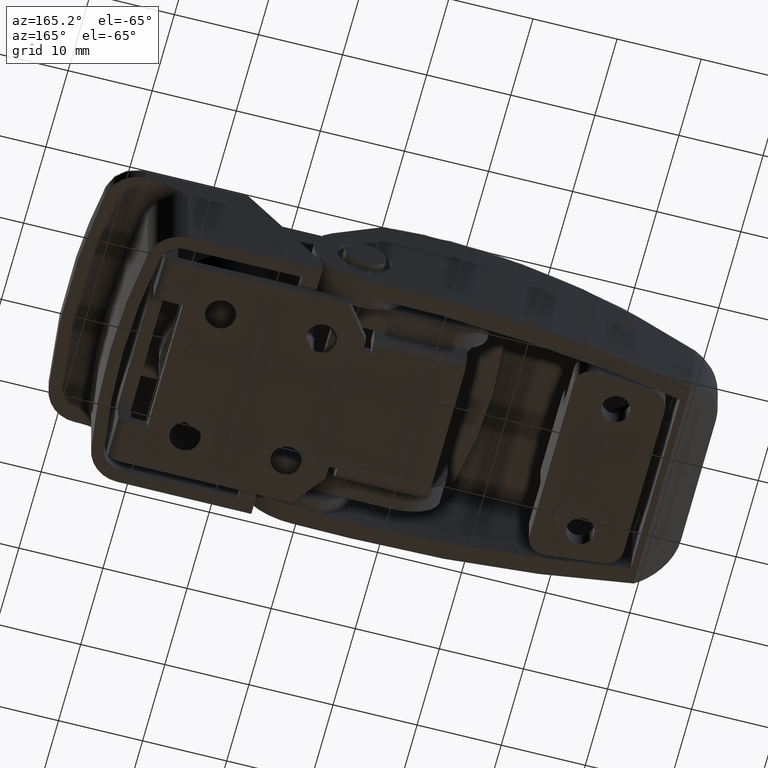
[diagram: clean part render]
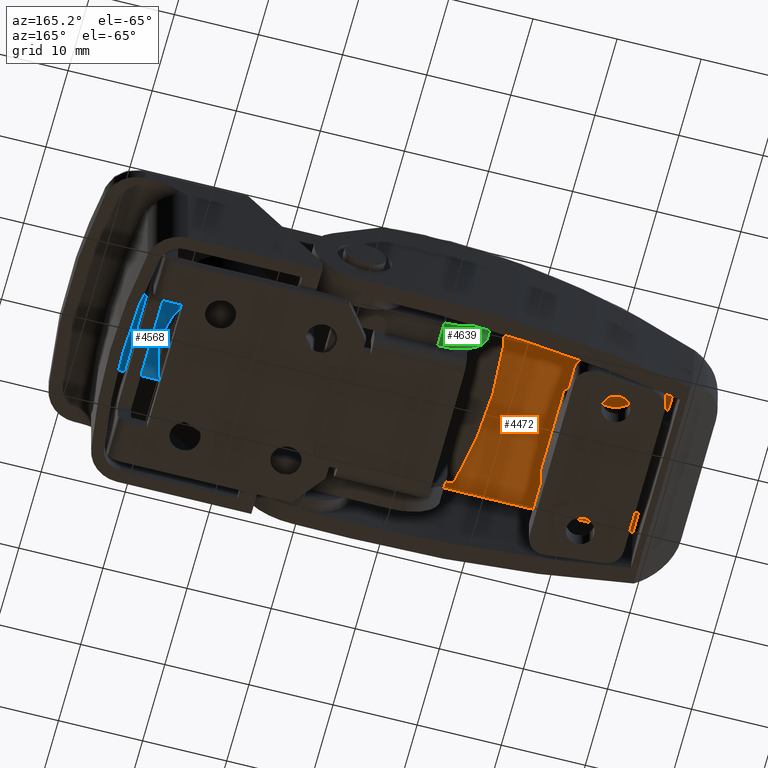
[diagram: same view with three faces highlighted in distinct colors, each labeled with its STEP entity id]
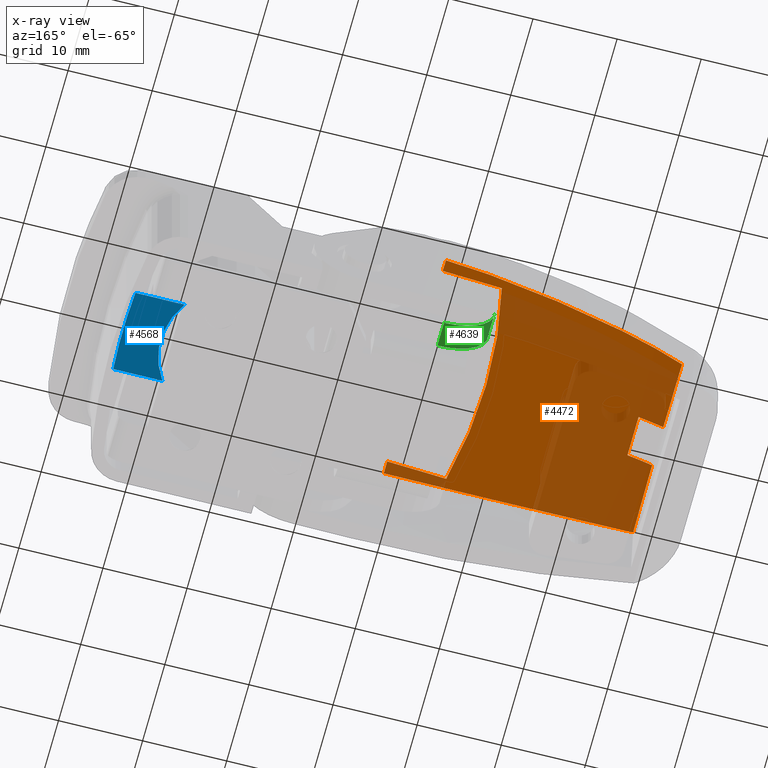
[diagram: x-ray of the same camera — body ghosted, the three highlighted faces saturated]
A machine part, auxiliary view with three faces highlighted in distinct colors.
The next image is the same camera in x-ray (body ghosted, the three faces saturated) — at least one of them is partly hidden behind the body in this view.
Their STEP definitions:

[orange] entity #4472 — the highlighted face is a freeform B-spline surface patch.
#57=ELLIPSE('',#4793,73.6098325620137,13.7303830654417);
#58=ELLIPSE('',#4796,74.899179347333,13.8962088788987);
#104=B_SPLINE_CURVE_WITH_KNOTS('',3,(#7561,#7562,#7563,#7564,#7565,#7566),
 .UNSPECIFIED.,.F.,.F.,(4,2,4),(-0.500129540387408,-0.250050430909643,-9.99999999950687E-7),
 .UNSPECIFIED.);
#105=B_SPLINE_CURVE_WITH_KNOTS('',3,(#7576,#7577,#7578,#7579,#7580,#7581),
 .UNSPECIFIED.,.F.,.F.,(4,2,4),(0.,0.426948497210441,0.853911783725936),
 .UNSPECIFIED.);
#106=B_SPLINE_CURVE_WITH_KNOTS('',3,(#7588,#7589,#7590,#7591,#7592,#7593),
 .UNSPECIFIED.,.F.,.F.,(4,2,4),(0.,0.42693543884801,0.853861113275703),
 .UNSPECIFIED.);
#107=B_SPLINE_CURVE_WITH_KNOTS('',3,(#7676,#7677,#7678,#7679),
 .UNSPECIFIED.,.F.,.F.,(4,4),(0.,1.),.UNSPECIFIED.);
#108=B_SPLINE_CURVE_WITH_KNOTS('',3,(#7683,#7684,#7685,#7686,#7687,#7688),
 .UNSPECIFIED.,.F.,.F.,(4,2,4),(-0.802088642518856,-0.427689449484382,-9.9999934399797E-7),
 .UNSPECIFIED.);
#109=B_SPLINE_CURVE_WITH_KNOTS('',3,(#7690,#7691,#7692,#7693,#7694,#7695,
#7696,#7697,#7698,#7699,#7700,#7701,#7702,#7703,#7704,#7705,#7706,#7707,
#7708,#7709,#7710,#7711,#7712,#7713,#7714,#7715,#7716,#7717),
 .UNSPECIFIED.,.F.,.F.,(4,2,2,2,2,2,2,2,2,2,2,2,2,4),(0.0587048708349566,
0.416450149898455,0.767808512042721,0.883917270166144,1.11517201894529,
1.2304969432524,1.4609845577654,1.57630958351097,1.80756445693079,1.92367326039555,
2.15731947701235,2.2750316565115,2.51274924385868,2.63277771583725),
 .UNSPECIFIED.);
#110=B_SPLINE_CURVE_WITH_KNOTS('',3,(#7719,#7720,#7721,#7722,#7723,#7724),
 .UNSPECIFIED.,.F.,.F.,(4,2,4),(-0.34659985549186,-0.248297700605214,0.),
 .UNSPECIFIED.);
#111=B_SPLINE_CURVE_WITH_KNOTS('',3,(#7727,#7728,#7729,#7730),
 .UNSPECIFIED.,.F.,.F.,(4,4),(0.,1.),.UNSPECIFIED.);
#166=B_SPLINE_SURFACE_WITH_KNOTS('',3,3,((#7611,#7612,#7613,#7614),(#7615,
#7616,#7617,#7618),(#7619,#7620,#7621,#7622),(#7623,#7624,#7625,#7626),
(#7627,#7628,#7629,#7630),(#7631,#7632,#7633,#7634),(#7635,#7636,#7637,
#7638),(#7639,#7640,#7641,#7642),(#7643,#7644,#7645,#7646),(#7647,#7648,
#7649,#7650),(#7651,#7652,#7653,#7654),(#7655,#7656,#7657,#7658),(#7659,
#7660,#7661,#7662),(#7663,#7664,#7665,#7666),(#7667,#7668,#7669,#7670),
(#7671,#7672,#7673,#7674)),.UNSPECIFIED.,.F.,.F.,.F.,(4,1,1,1,1,1,1,1,1,
1,1,1,1,4),(4,4),(0.,0.0833333333333331,0.166666666666666,0.208333333333333,
0.291666666666667,0.333333333333333,0.416666666666667,0.458333333333333,
0.541666666666667,0.583333333333333,0.666666666666667,0.708333333333334,
0.833333333333333,1.),(0.,1.),.UNSPECIFIED.);
#484=FACE_OUTER_BOUND('',#789,.T.);
#789=EDGE_LOOP('',(#3336,#3337,#3338,#3339,#3340,#3341,#3342,#3343,#3344,
#3345,#3346,#3347));
#1766=CIRCLE('',#4798,110.);
#1767=CIRCLE('',#4799,110.);
#2041=VERTEX_POINT('',#7553);
#2042=VERTEX_POINT('',#7554);
#2044=VERTEX_POINT('',#7560);
#2046=VERTEX_POINT('',#7571);
#2047=VERTEX_POINT('',#7575);
#2050=VERTEX_POINT('',#7586);
#2057=VERTEX_POINT('',#7675);
#2058=VERTEX_POINT('',#7680);
#2059=VERTEX_POINT('',#7682);
#2060=VERTEX_POINT('',#7689);
#2061=VERTEX_POINT('',#7718);
#2062=VERTEX_POINT('',#7725);
#2517=EDGE_CURVE('',#2041,#2042,#57,.T.);
#2520=EDGE_CURVE('',#2044,#2041,#104,.T.);
#2523=EDGE_CURVE('',#2046,#2044,#58,.T.);
#2525=EDGE_CURVE('',#2046,#2047,#105,.T.);
#2529=EDGE_CURVE('',#2050,#2042,#106,.T.);
#2537=EDGE_CURVE('',#2057,#2050,#107,.T.);
#2538=EDGE_CURVE('',#2057,#2058,#1766,.T.);
#2539=EDGE_CURVE('',#2059,#2058,#108,.F.);
#2540=EDGE_CURVE('',#2060,#2059,#109,.T.);
#2541=EDGE_CURVE('',#2061,#2060,#110,.F.);
#2542=EDGE_CURVE('',#2061,#2062,#1767,.T.);
#2543=EDGE_CURVE('',#2062,#2047,#111,.T.);
#3336=ORIENTED_EDGE('',*,*,#2523,.T.);
#3337=ORIENTED_EDGE('',*,*,#2520,.T.);
#3338=ORIENTED_EDGE('',*,*,#2517,.T.);
#3339=ORIENTED_EDGE('',*,*,#2529,.F.);
#3340=ORIENTED_EDGE('',*,*,#2537,.F.);
#3341=ORIENTED_EDGE('',*,*,#2538,.T.);
#3342=ORIENTED_EDGE('',*,*,#2539,.F.);
#3343=ORIENTED_EDGE('',*,*,#2540,.F.);
#3344=ORIENTED_EDGE('',*,*,#2541,.F.);
#3345=ORIENTED_EDGE('',*,*,#2542,.T.);
#3346=ORIENTED_EDGE('',*,*,#2543,.T.);
#3347=ORIENTED_EDGE('',*,*,#2525,.F.);
#4472=ADVANCED_FACE('',(#484),#166,.T.);
#4793=AXIS2_PLACEMENT_3D('',#7555,#5469,#5470);
#4796=AXIS2_PLACEMENT_3D('',#7572,#5479,#5480);
#4798=AXIS2_PLACEMENT_3D('',#7681,#5492,#5493);
#4799=AXIS2_PLACEMENT_3D('',#7726,#5494,#5495);
#5469=DIRECTION('center_axis',(0.,0.,1.));
#5470=DIRECTION('ref_axis',(0.999905534252578,0.0137449107333032,0.));
#5479=DIRECTION('center_axis',(0.,0.,-1.));
#5480=DIRECTION('ref_axis',(0.999926005157075,0.0121648761034747,0.));
#5492=DIRECTION('center_axis',(1.,4.85343398743238E-16,0.));
#5493=DIRECTION('ref_axis',(-4.81411172885812E-16,0.991898054310394,-0.127036411533284));
#5494=DIRECTION('center_axis',(1.,4.85343398743238E-16,0.));
#5495=DIRECTION('ref_axis',(-4.81411172885812E-16,0.991898054310394,-0.127036411533284));
#7553=CARTESIAN_POINT('',(-36.0357901266785,5.40255413392599,-2.49999999994655));
#7554=CARTESIAN_POINT('',(-39.,4.33163095403197,-2.5));
#7555=CARTESIAN_POINT('Origin',(27.2930828714964,-0.754878842302573,-2.5));
#7560=CARTESIAN_POINT('',(-36.0357901154842,5.4025541465064,2.49999999993064));
#7561=CARTESIAN_POINT('Ctrl Pts',(-36.0357901174086,5.40255414536015,2.49999999983778));
#7562=CARTESIAN_POINT('Ctrl Pts',(-36.0119211439846,5.42995283765464,1.66719231726163));
#7563=CARTESIAN_POINT('Ctrl Pts',(-35.9999986233061,5.44363844824379,0.833516042408773));
#7564=CARTESIAN_POINT('Ctrl Pts',(-36.000001385271,5.44363527784243,-0.833706288969021));
#7565=CARTESIAN_POINT('Ctrl Pts',(-36.0119240287181,5.42994952632974,-1.66729250694612));
#7566=CARTESIAN_POINT('Ctrl Pts',(-36.0357901281296,5.40255413305372,-2.49999999987626));
#7571=CARTESIAN_POINT('',(-39.,4.33163095666349,2.5));
#7572=CARTESIAN_POINT('Origin',(28.5735177002617,-0.867027448535898,2.5));
#7575=CARTESIAN_POINT('',(-39.,3.76343545024875,11.0168984994586));
#7576=CARTESIAN_POINT('Ctrl Pts',(-39.,4.3316309566635,2.5));
#7577=CARTESIAN_POINT('Ctrl Pts',(-39.,4.29661504341276,3.92273082092926));
#7578=CARTESIAN_POINT('Ctrl Pts',(-39.,4.23171518578809,5.3445005853592));
#7579=CARTESIAN_POINT('Ctrl Pts',(-39.,4.04224913866323,8.18438229588712));
#7580=CARTESIAN_POINT('Ctrl Pts',(-39.,3.91770231940784,9.60216972891936));
#7581=CARTESIAN_POINT('Ctrl Pts',(-39.,3.76343545024875,11.0168984994586));
#7586=CARTESIAN_POINT('',(-39.,3.76343545024875,-11.0168984994585));
#7588=CARTESIAN_POINT('Ctrl Pts',(-39.,3.76343545024876,-11.0168984994585));
#7589=CARTESIAN_POINT('Ctrl Pts',(-39.,3.91770277958995,-9.60216643945893));
#7590=CARTESIAN_POINT('Ctrl Pts',(-39.,4.04224963233771,-8.18437100188246));
#7591=CARTESIAN_POINT('Ctrl Pts',(-39.,4.23171566183851,-5.34449516024613));
#7592=CARTESIAN_POINT('Ctrl Pts',(-39.,4.29661512076621,-3.92272776202939));
#7593=CARTESIAN_POINT('Ctrl Pts',(-39.,4.33163095403198,-2.5));
#7611=CARTESIAN_POINT('Ctrl Pts',(-10.,9.40878597414338,-13.9740052686612));
#7612=CARTESIAN_POINT('Ctrl Pts',(-13.3333333333333,9.40878597414338,-13.9740052686612));
#7613=CARTESIAN_POINT('Ctrl Pts',(-29.3333333333333,7.52700246617851,-12.9883030122603));
#7614=CARTESIAN_POINT('Ctrl Pts',(-39.,3.76343545024876,-11.0168984994585));
#7615=CARTESIAN_POINT('Ctrl Pts',(-10.,9.50767582340667,-13.2018750747159));
#7616=CARTESIAN_POINT('Ctrl Pts',(-13.3333333333333,9.50767582340667,-13.2018750747159));
#7617=CARTESIAN_POINT('Ctrl Pts',(-29.3333333333333,7.60428130070577,-12.2697625246076));
#7618=CARTESIAN_POINT('Ctrl Pts',(-39.,3.82990877740801,-10.4072947196521));
#7619=CARTESIAN_POINT('Ctrl Pts',(-10.,9.68906258996021,-11.655515175613));
#7620=CARTESIAN_POINT('Ctrl Pts',(-13.3333333333333,9.68906258996021,-11.655515175613));
#7621=CARTESIAN_POINT('Ctrl Pts',(-29.3333333333334,7.74599760916712,-10.8312869182157));
#7622=CARTESIAN_POINT('Ctrl Pts',(-39.,3.95181498958151,-9.18698543885255));
#7623=CARTESIAN_POINT('Ctrl Pts',(-10.,9.87471102270104,-9.71818766000375));
#7624=CARTESIAN_POINT('Ctrl Pts',(-13.3333333333333,9.87471102270104,-9.71818766000375));
#7625=CARTESIAN_POINT('Ctrl Pts',(-29.3333333333333,7.89100794538368,-9.03018530016674));
#7626=CARTESIAN_POINT('Ctrl Pts',(-39.,4.07656500121274,-7.65920195105237));
#7627=CARTESIAN_POINT('Ctrl Pts',(-10.,10.029483672776,-7.77823183017293));
#7628=CARTESIAN_POINT('Ctrl Pts',(-13.3333333333333,10.029483672776,-7.77823183017293));
#7629=CARTESIAN_POINT('Ctrl Pts',(-29.3333333333334,8.01189290773418,-7.22718947877003));
#7630=CARTESIAN_POINT('Ctrl Pts',(-39.,4.18056636054935,-6.12989038873019));
#7631=CARTESIAN_POINT('Ctrl Pts',(-10.,10.1285799873607,-6.2244268289389));
#7632=CARTESIAN_POINT('Ctrl Pts',(-13.3333333333333,10.1285799873606,-6.2244268289389));
#7633=CARTESIAN_POINT('Ctrl Pts',(-29.3333333333333,8.08929087481082,-5.78341832601236));
#7634=CARTESIAN_POINT('Ctrl Pts',(-39.,4.24715882236821,-4.90532293084555));
#7635=CARTESIAN_POINT('Ctrl Pts',(-10.,10.2215063791178,-4.28052665441551));
#7636=CARTESIAN_POINT('Ctrl Pts',(-13.3333333333333,10.2215063791178,-4.28052665441551));
#7637=CARTESIAN_POINT('Ctrl Pts',(-29.3333333333333,8.16187685831026,-3.97735946293952));
#7638=CARTESIAN_POINT('Ctrl Pts',(-39.,4.30961464547769,-3.37349750726272));
#7639=CARTESIAN_POINT('Ctrl Pts',(-10.,10.2710796720344,-2.72435425246189));
#7640=CARTESIAN_POINT('Ctrl Pts',(-13.3333333333333,10.2710796720344,-2.72435425246189));
#7641=CARTESIAN_POINT('Ctrl Pts',(-29.3333333333333,8.20060624972371,-2.53154632866112));
#7642=CARTESIAN_POINT('Ctrl Pts',(-39.,4.34294128542114,-2.14721756584811));
#7643=CARTESIAN_POINT('Ctrl Pts',(-10.,10.3020656082434,-0.778480907291087));
#7644=CARTESIAN_POINT('Ctrl Pts',(-13.3333333333333,10.3020656082434,-0.778480907291087));
#7645=CARTESIAN_POINT('Ctrl Pts',(-29.3333333333333,8.22482173807619,-0.723577093737343));
#7646=CARTESIAN_POINT('Ctrl Pts',(-39.,4.3637800552292,-0.613756334975758));
#7647=CARTESIAN_POINT('Ctrl Pts',(-10.,10.302065589456,0.778480895376731));
#7648=CARTESIAN_POINT('Ctrl Pts',(-13.3333333333334,10.302065589456,0.778480895376731));
#7649=CARTESIAN_POINT('Ctrl Pts',(-29.3333333333334,8.22482163910511,0.723590942623761));
#7650=CARTESIAN_POINT('Ctrl Pts',(-39.,4.36377995795322,0.61376870321406));
#7651=CARTESIAN_POINT('Ctrl Pts',(-10.,10.2710796585049,2.72435423886482));
#7652=CARTESIAN_POINT('Ctrl Pts',(-13.3333333333333,10.2710796585049,2.72435423886482));
#7653=CARTESIAN_POINT('Ctrl Pts',(-29.3333333333333,8.20060610350365,2.5315536132844));
#7654=CARTESIAN_POINT('Ctrl Pts',(-39.,4.34294114487453,2.14722342111593));
#7655=CARTESIAN_POINT('Ctrl Pts',(-10.,10.2215063088085,4.28052664304001));
#7656=CARTESIAN_POINT('Ctrl Pts',(-13.3333333333333,10.2215063088085,4.28052664304001));
#7657=CARTESIAN_POINT('Ctrl Pts',(-29.3333333333333,8.16187671495952,3.97736470541749));
#7658=CARTESIAN_POINT('Ctrl Pts',(-39.,4.3096145105679,3.3735014024535));
#7659=CARTESIAN_POINT('Ctrl Pts',(-10.,10.1099946878912,6.61320683950992));
#7660=CARTESIAN_POINT('Ctrl Pts',(-13.3333333333334,10.1099946878912,6.61320683950992));
#7661=CARTESIAN_POINT('Ctrl Pts',(-29.3333333333333,8.07477360987474,6.14463234976247));
#7662=CARTESIAN_POINT('Ctrl Pts',(-39.,4.23466760085702,5.21168910406403));
#7663=CARTESIAN_POINT('Ctrl Pts',(-10.,9.8952976353309,9.71994010790947));
#7664=CARTESIAN_POINT('Ctrl Pts',(-13.3333333333333,9.8952976353309,9.71994010790947));
#7665=CARTESIAN_POINT('Ctrl Pts',(-29.3333333333333,7.90709167248063,9.03145310712258));
#7666=CARTESIAN_POINT('Ctrl Pts',(-39.,4.0903975930493,7.66022486511987));
#7667=CARTESIAN_POINT('Ctrl Pts',(-10.,9.60656567266996,12.4297448807707));
#7668=CARTESIAN_POINT('Ctrl Pts',(-13.3333333333333,9.60656567266996,12.4297448807707));
#7669=CARTESIAN_POINT('Ctrl Pts',(-29.3333333333333,7.68156014851717,11.5512213804088));
#7670=CARTESIAN_POINT('Ctrl Pts',(-39.,3.89638212449348,9.79768995502667));
#7671=CARTESIAN_POINT('Ctrl Pts',(-10.,9.40878597414338,13.9740052686612));
#7672=CARTESIAN_POINT('Ctrl Pts',(-13.3333333333333,9.40878597414338,13.9740052686612));
#7673=CARTESIAN_POINT('Ctrl Pts',(-29.3333333333333,7.5270024661785,12.9883030122603));
#7674=CARTESIAN_POINT('Ctrl Pts',(-39.,3.76343545024875,11.0168984994586));
#7675=CARTESIAN_POINT('',(-10.,9.40878597414338,-13.9740052686612));
#7676=CARTESIAN_POINT('Ctrl Pts',(-10.,9.40878597414338,-13.9740052686612));
#7677=CARTESIAN_POINT('Ctrl Pts',(-13.3333333333333,9.40878597414338,-13.9740052686612));
#7678=CARTESIAN_POINT('Ctrl Pts',(-29.3333333333333,7.5270024661785,-12.9883030122603));
#7679=CARTESIAN_POINT('Ctrl Pts',(-39.,3.76343545024875,-11.0168984994585));
#7680=CARTESIAN_POINT('',(-9.99999999796919,9.58746495277215,-12.4999999987159));
#7681=CARTESIAN_POINT('Origin',(-9.99999999999995,-99.7,0.));
#7682=CARTESIAN_POINT('',(-17.0421141920238,8.89011030533019,-12.4999999909238));
#7683=CARTESIAN_POINT('Ctrl Pts',(-10.,9.5874649482037,-12.5));
#7684=CARTESIAN_POINT('Ctrl Pts',(-10.578572850299,9.5874649482037,-12.5));
#7685=CARTESIAN_POINT('Ctrl Pts',(-11.5171772403366,9.52783298909775,-12.5));
#7686=CARTESIAN_POINT('Ctrl Pts',(-14.1277348553152,9.27441275482597,-12.5));
#7687=CARTESIAN_POINT('Ctrl Pts',(-15.6302398973691,9.08767473182443,-12.5));
#7688=CARTESIAN_POINT('Ctrl Pts',(-17.0421141927463,8.89011029533175,-12.5));
#7689=CARTESIAN_POINT('',(-17.0421139113729,8.89011033251921,12.4999999823245));
#7690=CARTESIAN_POINT('Ctrl Pts',(-17.0421139750615,8.89011069641353,12.499999940375));
#7691=CARTESIAN_POINT('Ctrl Pts',(-17.3090208238914,8.98061384133364,11.364941312168));
#7692=CARTESIAN_POINT('Ctrl Pts',(-17.5398389212534,9.05853233045002,10.2205873132933));
#7693=CARTESIAN_POINT('Ctrl Pts',(-17.9245114356098,9.18814757146228,7.93772850013889));
#7694=CARTESIAN_POINT('Ctrl Pts',(-18.0795696949719,9.24024445438885,6.80004735652763));
#7695=CARTESIAN_POINT('Ctrl Pts',(-18.2379824509514,9.29342092242657,5.280676089977));
#7696=CARTESIAN_POINT('Ctrl Pts',(-18.273399805774,9.30530360104693,4.90283119467177));
#7697=CARTESIAN_POINT('Ctrl Pts',(-18.3675627250069,9.33688595939017,3.77133338430312));
#7698=CARTESIAN_POINT('Ctrl Pts',(-18.4146080904013,9.35265091959725,3.01659929642356));
#7699=CARTESIAN_POINT('Ctrl Pts',(-18.4615765651348,9.36838780808824,1.88438971021567));
#7700=CARTESIAN_POINT('Ctrl Pts',(-18.4733002959009,9.37231500809988,1.50746337874336));
#7701=CARTESIAN_POINT('Ctrl Pts',(-18.496732757577,9.38016339279155,0.376940326047448));
#7702=CARTESIAN_POINT('Ctrl Pts',(-18.4967327929535,9.38016340821883,-0.376936032617752));
#7703=CARTESIAN_POINT('Ctrl Pts',(-18.4733004098921,9.37231505043762,-1.50745945893489));
#7704=CARTESIAN_POINT('Ctrl Pts',(-18.4615766959727,9.36838785549004,-1.8843861354319));
#7705=CARTESIAN_POINT('Ctrl Pts',(-18.4146082491335,9.35265099001829,-3.01659645220304));
#7706=CARTESIAN_POINT('Ctrl Pts',(-18.3675629734817,9.33688606499438,-3.77133046610942));
#7707=CARTESIAN_POINT('Ctrl Pts',(-18.2733999489097,9.30530373813868,-4.90282889909615));
#7708=CARTESIAN_POINT('Ctrl Pts',(-18.237982910548,9.29342104358175,-5.28067294073335));
#7709=CARTESIAN_POINT('Ctrl Pts',(-18.1194585929548,9.25363502399323,-6.41745697296088));
#7710=CARTESIAN_POINT('Ctrl Pts',(-18.0243709764024,9.22169312666429,-7.17494337253884));
#7711=CARTESIAN_POINT('Ctrl Pts',(-17.8576329041534,9.16559572037065,-8.31021610622866));
#7712=CARTESIAN_POINT('Ctrl Pts',(-17.7977643374861,9.14544069981171,-8.68991232513989));
#7713=CARTESIAN_POINT('Ctrl Pts',(-17.6049514560338,9.08047314656143,-9.83417057946751));
#7714=CARTESIAN_POINT('Ctrl Pts',(-17.4597687310368,9.03148535827931,-10.5962362003273));
#7715=CARTESIAN_POINT('Ctrl Pts',(-17.2171617010857,8.94942436730852,-11.7372686724243));
#7716=CARTESIAN_POINT('Ctrl Pts',(-17.1316681228659,8.92047564345627,-12.1191612164494));
#7717=CARTESIAN_POINT('Ctrl Pts',(-17.0421141964272,8.89011031535316,-12.4999999615154));
#7718=CARTESIAN_POINT('',(-9.99999993531499,9.58746435917111,12.4999999677807));
#7719=CARTESIAN_POINT('Ctrl Pts',(-17.0421138686831,8.89010996560278,12.5));
#7720=CARTESIAN_POINT('Ctrl Pts',(-16.211133401675,9.0063895231836,12.5));
#7721=CARTESIAN_POINT('Ctrl Pts',(-15.3666448952951,9.11641577841228,12.5));
#7722=CARTESIAN_POINT('Ctrl Pts',(-12.4355614614212,9.46282943109544,12.5));
#7723=CARTESIAN_POINT('Ctrl Pts',(-10.8276599345404,9.58746421357472,12.5));
#7724=CARTESIAN_POINT('Ctrl Pts',(-10.,9.58746421357472,12.5));
#7725=CARTESIAN_POINT('',(-10.,9.40878597414338,13.9740052686612));
#7726=CARTESIAN_POINT('Origin',(-9.99999999999995,-99.7,0.));
#7727=CARTESIAN_POINT('Ctrl Pts',(-10.,9.40878597414338,13.9740052686612));
#7728=CARTESIAN_POINT('Ctrl Pts',(-13.3333333333333,9.40878597414338,13.9740052686612));
#7729=CARTESIAN_POINT('Ctrl Pts',(-29.3333333333333,7.5270024661785,12.9883030122603));
#7730=CARTESIAN_POINT('Ctrl Pts',(-39.,3.76343545024875,11.0168984994586));

[blue] entity #4568 — the highlighted planar face has unit normal (0, -0, 1).
#357=PLANE('',#4966);
#580=FACE_OUTER_BOUND('',#897,.T.);
#897=EDGE_LOOP('',(#3818,#3819,#3820,#3821));
#1207=LINE('',#8751,#1559);
#1209=LINE('',#8757,#1561);
#1559=VECTOR('',#5929,5.84641994389252);
#1561=VECTOR('',#5933,5.84641994389252);
#1846=CIRCLE('',#4967,9.);
#1847=CIRCLE('',#4968,73.5000034829201);
#2180=VERTEX_POINT('',#8743);
#2183=VERTEX_POINT('',#8749);
#2184=VERTEX_POINT('',#8753);
#2186=VERTEX_POINT('',#8756);
#2752=EDGE_CURVE('',#2183,#2180,#1207,.T.);
#2754=EDGE_CURVE('',#2184,#2186,#1209,.T.);
#2758=EDGE_CURVE('',#2180,#2184,#1846,.T.);
#2759=EDGE_CURVE('',#2186,#2183,#1847,.T.);
#3818=ORIENTED_EDGE('',*,*,#2758,.F.);
#3819=ORIENTED_EDGE('',*,*,#2752,.F.);
#3820=ORIENTED_EDGE('',*,*,#2759,.F.);
#3821=ORIENTED_EDGE('',*,*,#2754,.F.);
#4568=ADVANCED_FACE('',(#580),#357,.F.);
#4966=AXIS2_PLACEMENT_3D('',#8763,#5937,#5938);
#4967=AXIS2_PLACEMENT_3D('',#8764,#5939,#5940);
#4968=AXIS2_PLACEMENT_3D('',#8765,#5941,#5942);
#5929=DIRECTION('',(-1.,4.74184660684065E-31,-1.58603289232165E-16));
#5933=DIRECTION('',(1.,-4.74184660684065E-31,3.1720657846433E-16));
#5937=DIRECTION('center_axis',(-3.60429898821662E-31,1.,2.94351084037692E-32));
#5938=DIRECTION('ref_axis',(0.,0.,1.));
#5939=DIRECTION('center_axis',(3.60429898821662E-31,-1.,-2.94351084037692E-32));
#5940=DIRECTION('ref_axis',(-1.,-3.60429898821662E-31,-1.06770086325535E-62));
#5941=DIRECTION('center_axis',(-3.60429898821662E-31,1.,2.94351084037692E-32));
#5942=DIRECTION('ref_axis',(0.985613637256262,3.60219571217007E-31,-0.169014076498029));
#8743=CARTESIAN_POINT('',(7.48331477354788,5.99999999999999,-5.));
#8749=CARTESIAN_POINT('',(13.3297347174404,5.99999999999999,-4.99999999999999));
#8751=CARTESIAN_POINT('',(14.,5.99999999999999,-5.));
#8753=CARTESIAN_POINT('',(7.48331477354788,5.99999999999999,5.));
#8756=CARTESIAN_POINT('',(13.3297347174404,5.99999999999999,5.00000000000001));
#8757=CARTESIAN_POINT('',(-4.44089209850063E-15,5.99999999999999,5.));
#8763=CARTESIAN_POINT('Origin',(7.,5.99999999999999,4.76470714734963E-15));
#8764=CARTESIAN_POINT('Origin',(0.,5.99999999999999,2.22044604925031E-15));
#8765=CARTESIAN_POINT('Origin',(-60.000003533758,5.99999999999997,-1.11022302462516E-14));

[green] entity #4639 — the highlighted cylindrical surface (partial cylindrical patch) has radius 6 mm, axis along (-0, -1, 0).
#651=FACE_OUTER_BOUND('',#974,.T.);
#974=EDGE_LOOP('',(#4196,#4197,#4198,#4199));
#1342=LINE('',#9494,#1694);
#1345=LINE('',#9501,#1697);
#1694=VECTOR('',#6314,3.00000000000001);
#1697=VECTOR('',#6323,3.00000000000001);
#1893=CIRCLE('',#5065,6.);
#1901=CIRCLE('',#5092,6.);
#2300=VERTEX_POINT('',#9399);
#2301=VERTEX_POINT('',#9401);
#2329=VERTEX_POINT('',#9492);
#2330=VERTEX_POINT('',#9499);
#2922=EDGE_CURVE('',#2301,#2300,#1893,.T.);
#2969=EDGE_CURVE('',#2329,#2300,#1342,.T.);
#2972=EDGE_CURVE('',#2329,#2330,#1901,.T.);
#2973=EDGE_CURVE('',#2330,#2301,#1345,.T.);
#4196=ORIENTED_EDGE('',*,*,#2922,.T.);
#4197=ORIENTED_EDGE('',*,*,#2969,.F.);
#4198=ORIENTED_EDGE('',*,*,#2972,.T.);
#4199=ORIENTED_EDGE('',*,*,#2973,.T.);
#4380=CYLINDRICAL_SURFACE('',#5091,6.);
#4639=ADVANCED_FACE('',(#651),#4380,.T.);
#5065=AXIS2_PLACEMENT_3D('',#9402,#6225,#6226);
#5091=AXIS2_PLACEMENT_3D('',#9498,#6319,#6320);
#5092=AXIS2_PLACEMENT_3D('',#9500,#6321,#6322);
#6225=DIRECTION('center_axis',(-1.8897413185109E-16,-4.76825982362797E-32,
-1.));
#6226=DIRECTION('ref_axis',(-1.,9.01077760610527E-48,1.8897413185109E-16));
#6314=DIRECTION('',(0.,0.,1.));
#6319=DIRECTION('center_axis',(0.,0.,1.));
#6320=DIRECTION('ref_axis',(-1.,0.,0.));
#6321=DIRECTION('center_axis',(3.48170614968892E-30,-5.64939649060204E-30,
1.));
#6322=DIRECTION('ref_axis',(-1.,-1.96695385033601E-59,3.48170614968892E-30));
#6323=DIRECTION('',(0.,0.,1.));
#9399=CARTESIAN_POINT('',(-27.5,7.99999999999999,-9.19999999999999));
#9401=CARTESIAN_POINT('',(-21.5,1.99999999999999,-9.19999999999999));
#9402=CARTESIAN_POINT('Origin',(-21.5,7.99999999999999,-9.19999999999999));
#9492=CARTESIAN_POINT('',(-27.5,7.99999999999999,-12.2));
#9494=CARTESIAN_POINT('',(-27.5,7.99999999999999,0.));
#9498=CARTESIAN_POINT('Origin',(-21.5,7.99999999999999,0.));
#9499=CARTESIAN_POINT('',(-21.5,1.99999999999999,-12.2));
#9500=CARTESIAN_POINT('Origin',(-21.5,7.99999999999999,-12.2));
#9501=CARTESIAN_POINT('',(-21.5,1.99999999999999,0.));